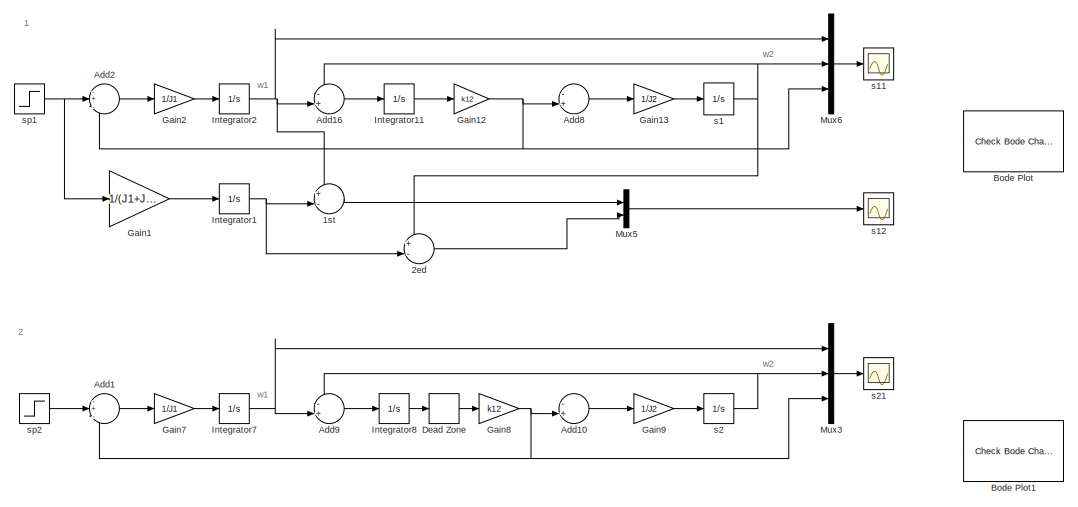
[diagram: root canvas - part 1/2, full width, top band]
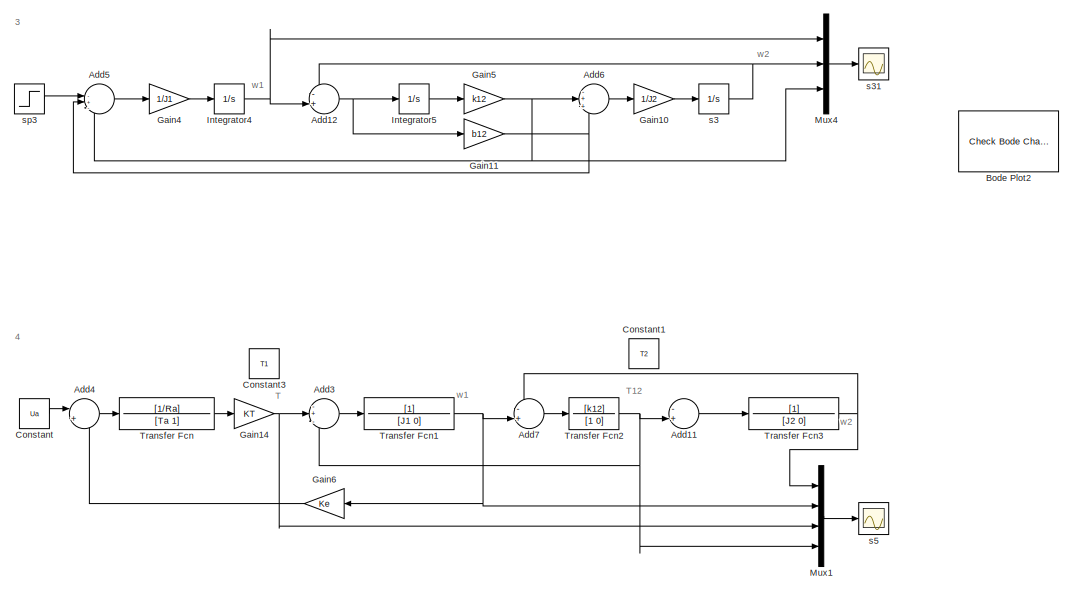
[diagram: root canvas - part 2/2, full width, bottom band]
MODEL slx_db30d509e7a5
KIND model
CONFIG AbsTol = auto
CONFIG EnableMultiTasking = off
CONFIG FixedStep = auto
CONFIG MaxStep = 0.001
CONFIG MinStep = auto
CONFIG RelTol = 1e-3
CONFIG SampleTimeConstraint = Unconstrained
CONFIG SolverName = VariableStepAuto
CONFIG StartTime = 0.0
CONFIG StopTime = Tmdl*0.2
BLOCK [Sum] 1st
  Inputs = +-|
  Ports = [2, 1]
BLOCK [Sum] 2ed
  Inputs = +-|
  Ports = [2, 1]
BLOCK [Sum] Add1
  Commented = on
  Inputs = -+-
  Ports = [3, 1]
BLOCK [Sum] Add10
  Commented = on
  Inputs = -+|
  Ports = [2, 1]
BLOCK [Sum] Add11
  Commented = on
  Inputs = -+|
  Ports = [2, 1]
BLOCK [Sum] Add12
  Commented = on
  Inputs = -+|
  Ports = [2, 1]
BLOCK [Sum] Add16
  Inputs = -+|
  Ports = [2, 1]
BLOCK [Sum] Add2
  Inputs = -+-
  Ports = [3, 1]
BLOCK [Sum] Add3
  Commented = on
  Inputs = -+-
  Ports = [3, 1]
BLOCK [Sum] Add4
  Commented = on
  Inputs = |+-
  Ports = [2, 1]
BLOCK [Sum] Add5
  Commented = on
  Inputs = |-+--
  Ports = [4, 1]
BLOCK [Sum] Add6
  Commented = on
  Inputs = -++
  Ports = [3, 1]
BLOCK [Sum] Add7
  Commented = on
  Inputs = -+|
  Ports = [2, 1]
BLOCK [Sum] Add8
  Inputs = -+|
  Ports = [2, 1]
BLOCK [Sum] Add9
  Commented = on
  Inputs = -+|
  Ports = [2, 1]
BLOCK [Reference] Bode Plot  REF=slctrlblks/Model Verification/Check Bode 
Characteristics
  InstantiateOnLoad = on
  Ports = []
  SourceBlock = slctrlblks/Model Verification/Check Bode \nCharacteristics
  SourceType = Checks_Bode
BLOCK [Reference] Bode Plot1  REF=slctrlblks/Model Verification/Check Bode 
Characteristics
  Commented = on
  InstantiateOnLoad = on
  Ports = []
  SourceBlock = slctrlblks/Model Verification/Check Bode \nCharacteristics
  SourceType = Checks_Bode
BLOCK [Reference] Bode Plot2  REF=slctrlblks/Model Verification/Check Bode 
Characteristics
  Commented = on
  InstantiateOnLoad = on
  Ports = []
  SourceBlock = slctrlblks/Model Verification/Check Bode \nCharacteristics
  SourceType = Checks_Bode
BLOCK [Constant] Constant
  Commented = on
  Value = Ua
BLOCK [Constant] Constant1
  Commented = on
  Value = T2
BLOCK [Constant] Constant3
  Commented = on
  Value = T1
BLOCK [DeadZone] Dead Zone
  Commented = on
  LowerValue = -dfi/2
  UpperValue = dfi/2
BLOCK [Gain] Gain1
  Gain = 1/(J1+J2)
BLOCK [Gain] Gain10
  Commented = on
  Gain = 1/J2
BLOCK [Gain] Gain11
  Commented = on
  Gain = b12
BLOCK [Gain] Gain12
  Gain = k12
BLOCK [Gain] Gain13
  Gain = 1/J2
BLOCK [Gain] Gain14
  Commented = on
  Gain = KT
BLOCK [Gain] Gain2
  Gain = 1/J1
BLOCK [Gain] Gain4
  Commented = on
  Gain = 1/J1
BLOCK [Gain] Gain5
  Commented = on
  Gain = k12
BLOCK [Gain] Gain6
  Commented = on
  Gain = Ke
  NameLocation = top
BLOCK [Gain] Gain7
  Commented = on
  Gain = 1/J1
BLOCK [Gain] Gain8
  Commented = on
  Gain = k12
BLOCK [Gain] Gain9
  Commented = on
  Gain = 1/J2
BLOCK [Integrator] Integrator1
  Ports = [1, 1]
BLOCK [Integrator] Integrator11
  Ports = [1, 1]
BLOCK [Integrator] Integrator2
  Ports = [1, 1]
BLOCK [Integrator] Integrator4
  Commented = on
  Ports = [1, 1]
BLOCK [Integrator] Integrator5
  Commented = on
  Ports = [1, 1]
BLOCK [Integrator] Integrator7
  Commented = on
  Ports = [1, 1]
BLOCK [Integrator] Integrator8
  Commented = on
  Ports = [1, 1]
BLOCK [Mux] Mux1
  Commented = on
  DisplayOption = bar
  Ports = [4, 1]
BLOCK [Mux] Mux3
  Commented = on
  DisplayOption = bar
  Inputs = 3
  Ports = [3, 1]
BLOCK [Mux] Mux4
  Commented = on
  DisplayOption = bar
  Inputs = 3
  Ports = [3, 1]
BLOCK [Mux] Mux5
  DisplayOption = bar
  Inputs = 2
  Ports = [2, 1]
BLOCK [Mux] Mux6
  DisplayOption = bar
  Inputs = 3
  Ports = [3, 1]
BLOCK [TransferFcn] Transfer Fcn
  Commented = on
  Denominator = [Ta 1]
  Numerator = [1/Ra]
BLOCK [TransferFcn] Transfer Fcn1
  Commented = on
  Denominator = [J1 0]
BLOCK [TransferFcn] Transfer Fcn2
  Commented = on
  Denominator = [1 0]
  Numerator = [k12]
BLOCK [TransferFcn] Transfer Fcn3
  Commented = on
  Denominator = [J2 0]
BLOCK [Integrator] s1
  Ports = [1, 1]
BLOCK [Scope] s11
  Floating = off
  NumInputPorts = 1
  Ports = [1]
  ScopeSpecificationString = Simulink.scopes.TimeScopeBlockCfg('CurrentConfiguration', extmgr.ConfigurationSet(extmgr.Configuration('Core','General UI',true,'FigureColor',[1 1 1]),extmgr.Configuration('Core','Source UI',true),extmgr.Configuration('Sources','WiredSimulink',true,'DataLogging',true,'DataLoggingSaveFormat','Array'),extmgr.Configuration('Visuals','Time Domain',true,'SerializedDisplays',{struct('MinYLimReal','-0.98...<+2325ch>
BLOCK [Scope] s12
  Floating = off
  NumInputPorts = 1
  Ports = [1]
  ScopeSpecificationString = Simulink.scopes.TimeScopeBlockCfg('CurrentConfiguration', extmgr.ConfigurationSet(extmgr.Configuration('Core','General UI',true,'FigureColor',[1 1 1]),extmgr.Configuration('Core','Source UI',true),extmgr.Configuration('Sources','WiredSimulink',true,'DataLoggingVariableName','ScopeData3','DataLogging',true,'DataLoggingSaveFormat','Array'),extmgr.Configuration('Visuals','Time Domain',true,'Serialize...<+2394ch>
BLOCK [Integrator] s2
  Commented = on
  Ports = [1, 1]
BLOCK [Scope] s21
  Commented = on
  Floating = off
  NumInputPorts = 1
  Ports = [1]
  ScopeSpecificationString = Simulink.scopes.TimeScopeBlockCfg('CurrentConfiguration', extmgr.ConfigurationSet(extmgr.Configuration('Core','General UI',true,'FigureColor',[1 1 1]),extmgr.Configuration('Core','Source UI',true),extmgr.Configuration('Sources','WiredSimulink',true,'DataLoggingVariableName','ScopeData1','DataLogging',true,'DataLoggingSaveFormat','Array'),extmgr.Configuration('Visuals','Time Domain',true,'Serialize...<+2377ch>
BLOCK [Integrator] s3
  Commented = on
  Ports = [1, 1]
BLOCK [Scope] s31
  Commented = on
  Floating = off
  NumInputPorts = 1
  Ports = [1]
  ScopeSpecificationString = Simulink.scopes.TimeScopeBlockCfg('CurrentConfiguration', extmgr.ConfigurationSet(extmgr.Configuration('Core','General UI',true,'FigureColor',[1 1 1]),extmgr.Configuration('Core','Source UI',true),extmgr.Configuration('Sources','WiredSimulink',true,'DataLoggingVariableName','ScopeData4','DataLogging',true,'DataLoggingSaveFormat','Array'),extmgr.Configuration('Visuals','Time Domain',true,'Serialize...<+2651ch>
BLOCK [Scope] s5
  Commented = on
  Floating = off
  NumInputPorts = 1
  Ports = [1]
  ScopeSpecificationString = Simulink.scopes.TimeScopeBlockCfg('CurrentConfiguration', extmgr.ConfigurationSet(extmgr.Configuration('Core','General UI',true,'FigureColor',[1 1 1]),extmgr.Configuration('Core','Source UI',true),extmgr.Configuration('Sources','WiredSimulink',true,'DataLoggingVariableName','ScopeData1','DataLogging',true,'DataLoggingSaveFormat','Array'),extmgr.Configuration('Visuals','Time Domain',true,'Serialize...<+2404ch>
BLOCK [Step] sp1
  After = Tref
  SampleTime = 0
  Time = 0.1
BLOCK [Step] sp2
  After = 0.1*Tref
  Commented = on
  SampleTime = 0
  Time = 0.1
BLOCK [Step] sp3
  After = Tref
  Commented = on
  SampleTime = 0
  Time = 0.1
ANNOTATION (root): 1
ANNOTATION (root): 2
ANNOTATION (root): 3
ANNOTATION (root): 4
ANNOTATION (root): T
ANNOTATION (root): T12
ANNOTATION (root): w1
ANNOTATION (root): w2
LINE 1st:1 -> Mux5:1
LINE 2ed:1 -> Mux5:2
LINE Add10:1 -> Gain9:1
LINE Add11:1 -> Transfer Fcn3:1
NET Add12:1 -> Gain11:1, Integrator5:1
LINE Add16:1 -> Integrator11:1
LINE Add1:1 -> Gain7:1
LINE Add2:1 -> Gain2:1
LINE Add3:1 -> Transfer Fcn1:1
LINE Add4:1 -> Transfer Fcn:1
LINE Add5:1 -> Gain4:1
LINE Add6:1 -> Gain10:1
LINE Add7:1 -> Transfer Fcn2:1
LINE Add8:1 -> Gain13:1
LINE Add9:1 -> Integrator8:1
LINE Constant:1 -> Add4:1
LINE Dead Zone:1 -> Gain8:1
LINE Gain10:1 -> s3:1
NET Gain11:1 -> Add5:3, Add6:3
NET Gain12:1 -> Add2:3, Add8:2, Mux6:3
LINE Gain13:1 -> s1:1
NET Gain14:1 -> Add3:2, Mux1:3
LINE Gain1:1 -> Integrator1:1
LINE Gain2:1 -> Integrator2:1
LINE Gain4:1 -> Integrator4:1
NET Gain5:1 -> Add5:4, Add6:2, Mux4:3
LINE Gain6:1 -> Add4:2
LINE Gain7:1 -> Integrator7:1
NET Gain8:1 -> Add10:2, Add1:3, Mux3:3
LINE Gain9:1 -> s2:1
LINE Integrator11:1 -> Gain12:1
NET Integrator1:1 -> 1st:2, 2ed:2
NET Integrator2:1 -> 1st:1, Add16:2, Mux6:1
NET Integrator4:1 -> Add12:2, Mux4:1
LINE Integrator5:1 -> Gain5:1
NET Integrator7:1 -> Add9:2, Mux3:1
LINE Integrator8:1 -> Dead Zone:1
LINE Mux1:1 -> s5:1
LINE Mux3:1 -> s21:1
LINE Mux4:1 -> s31:1
LINE Mux5:1 -> s12:1
LINE Mux6:1 -> s11:1
NET Transfer Fcn1:1 -> Add7:2, Gain6:1, Mux1:2
NET Transfer Fcn2:1 -> Add11:2, Add3:3, Mux1:4
NET Transfer Fcn3:1 -> Add7:1, Mux1:1
LINE Transfer Fcn:1 -> Gain14:1
NET s1:1 -> 2ed:1, Add16:1, Mux6:2
NET s2:1 -> Add9:1, Mux3:2
NET s3:1 -> Add12:1, Mux4:2
NET sp1:1 -> Add2:2, Gain1:1
LINE sp2:1 -> Add1:2
LINE sp3:1 -> Add5:2
note: NET lines group one-source signal fan-out (src -> all destinations, sorted); 1:1 wires keep LINE
